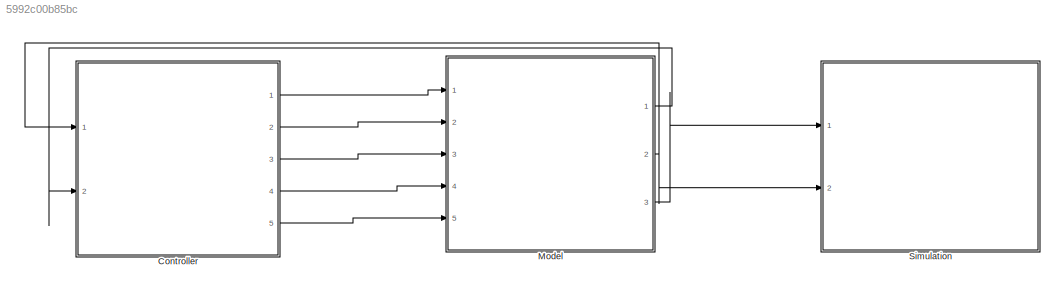
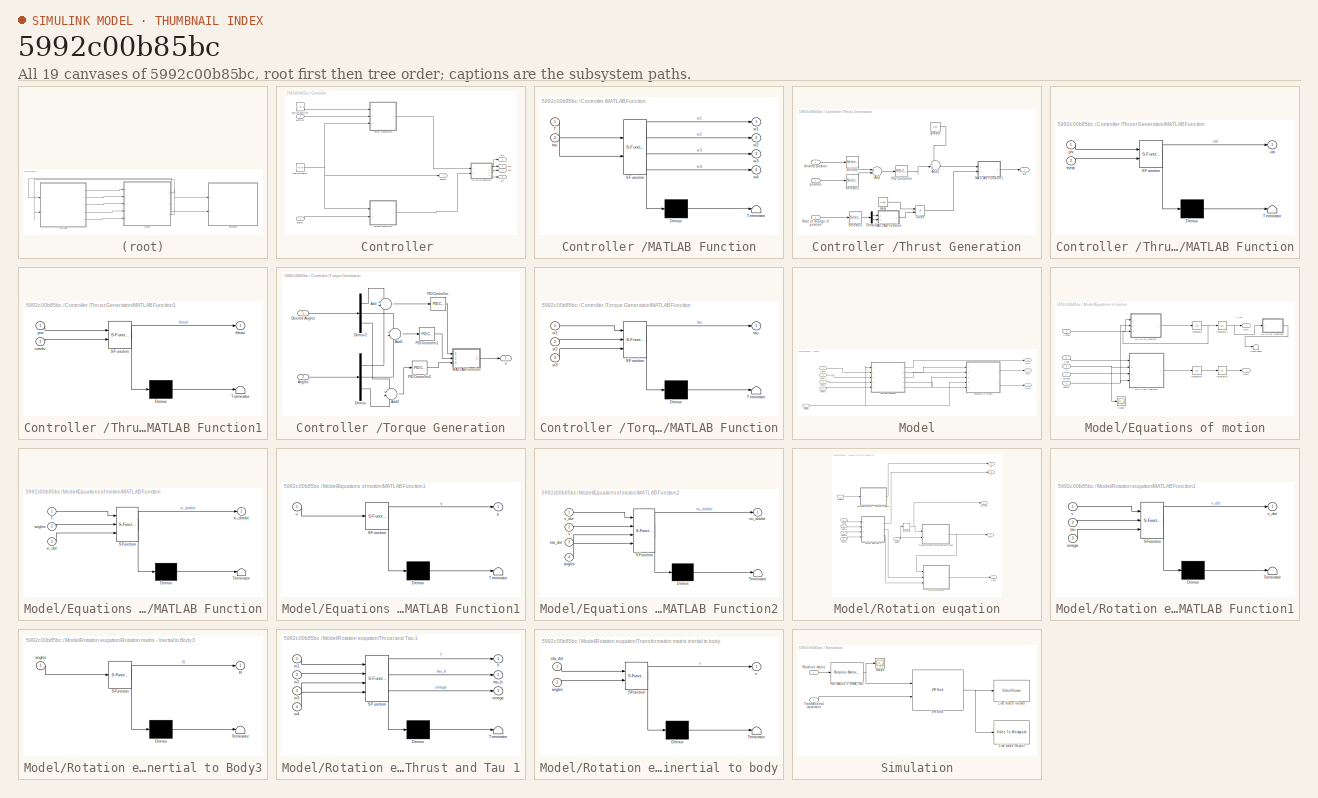
[diagram: thumbnail index - all 19 canvases of the model, root first then tree order]
MODEL slx_5992c00b85bc
KIND model
CONFIG AbsTol = auto
CONFIG EnableMultiTasking = off
CONFIG FixedStep = auto
CONFIG MaxStep = auto
CONFIG MinStep = auto
CONFIG RelTol = 1e-3
CONFIG SampleTimeConstraint = Unconstrained
CONFIG Solver = VariableStepAuto
CONFIG SolverName = VariableStepAuto
CONFIG StartTime = 0.0
CONFIG StopTime = 10.0
BLOCK [SubSystem] Controller 
  Ports = [2, 5]
  RequestExecContextInheritance = off
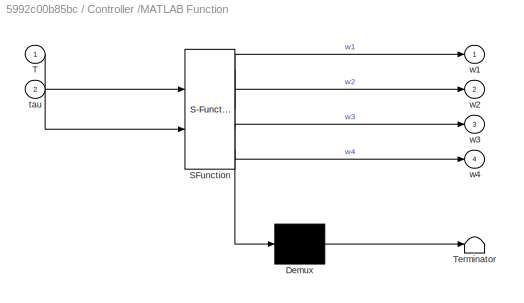
BLOCK [SubSystem] Controller /MATLAB Function
  ErrorFcn = Stateflow.Translate.translate
  PermitHierarchicalResolution = ExplicitOnly
  Ports = [2, 4]
  RequestExecContextInheritance = off
  SFBlockType = MATLAB Function
  TreatAsAtomicUnit = on
BLOCK [Demux] Controller /MATLAB Function/ Demux 
  Outputs = 1
  Ports = [1, 1]
BLOCK [S-Function] Controller /MATLAB Function/ SFunction 
  EnableBusSupport = on
  FunctionName = sf_sfun
  PortCounts = [2 5]
  Ports = [2, 5]
  SFcnIsStateOwnerBlock = off
  SFunctionDeploymentMode = off
  Tag = Stateflow S-Function teppo 4
BLOCK [Terminator] Controller /MATLAB Function/ Terminator 
BLOCK [Inport] Controller /MATLAB Function/T
  IconDisplay = Port number
BLOCK [Inport] Controller /MATLAB Function/tau
  IconDisplay = Port number
  Port = 2
BLOCK [Outport] Controller /MATLAB Function/w1
  IconDisplay = Port number
BLOCK [Outport] Controller /MATLAB Function/w2
  IconDisplay = Port number
  Port = 2
BLOCK [Outport] Controller /MATLAB Function/w3
  IconDisplay = Port number
  Port = 3
BLOCK [Outport] Controller /MATLAB Function/w4
  IconDisplay = Port number
  Port = 4
BLOCK [SubSystem] Controller /Thrust Generation
  Ports = [3, 1]
  RequestExecContextInheritance = off
BLOCK [Sum] Controller /Thrust Generation/Add
  IconShape = round
  InputSameDT = off
  Inputs = +-
  OutDataTypeStr = Inherit: Inherit via internal rule
  Ports = [2, 1]
  SaturateOnIntegerOverflow = off
BLOCK [Sum] Controller /Thrust Generation/Add2
  IconShape = round
  InputSameDT = off
  OutDataTypeStr = Inherit: Inherit via internal rule
  Ports = [2, 1]
  SaturateOnIntegerOverflow = off
BLOCK [Demux] Controller /Thrust Generation/Demux1
  DisplayOption = bar
  Outputs = 2
  Ports = [1, 2]
BLOCK [Product] Controller /Thrust Generation/Divide
  InputSameDT = off
  Inputs = */
  OutDataTypeStr = Inherit: Inherit via internal rule
  Ports = [2, 1]
  RndMeth = Floor
  SaturateOnIntegerOverflow = off
BLOCK [SubSystem] Controller /Thrust Generation/MATLAB Function
  ErrorFcn = Stateflow.Translate.translate
  PermitHierarchicalResolution = ExplicitOnly
  Ports = [2, 1]
  RequestExecContextInheritance = off
  SFBlockType = MATLAB Function
  TreatAsAtomicUnit = on
BLOCK [Demux] Controller /Thrust Generation/MATLAB Function/ Demux 
  Outputs = 1
  Ports = [1, 1]
BLOCK [S-Function] Controller /Thrust Generation/MATLAB Function/ SFunction 
  EnableBusSupport = on
  FunctionName = sf_sfun
  PortCounts = [2 2]
  Ports = [2, 2]
  SFcnIsStateOwnerBlock = off
  SFunctionDeploymentMode = off
  Tag = Stateflow S-Function teppo 2
BLOCK [Terminator] Controller /Thrust Generation/MATLAB Function/ Terminator 
BLOCK [Inport] Controller /Thrust Generation/MATLAB Function/phi
  IconDisplay = Port number
BLOCK [Inport] Controller /Thrust Generation/MATLAB Function/theta
  IconDisplay = Port number
  Port = 2
BLOCK [Outport] Controller /Thrust Generation/MATLAB Function/val
  IconDisplay = Port number
BLOCK [SubSystem] Controller /Thrust Generation/MATLAB Function1
  ErrorFcn = Stateflow.Translate.translate
  PermitHierarchicalResolution = ExplicitOnly
  Ports = [2, 1]
  RequestExecContextInheritance = off
  SFBlockType = MATLAB Function
  TreatAsAtomicUnit = on
BLOCK [Demux] Controller /Thrust Generation/MATLAB Function1/ Demux 
  Outputs = 1
  Ports = [1, 1]
BLOCK [S-Function] Controller /Thrust Generation/MATLAB Function1/ SFunction 
  EnableBusSupport = on
  FunctionName = sf_sfun
  PortCounts = [2 2]
  Ports = [2, 2]
  SFcnIsStateOwnerBlock = off
  SFunctionDeploymentMode = off
  Tag = Stateflow S-Function teppo 1
BLOCK [Terminator] Controller /Thrust Generation/MATLAB Function1/ Terminator 
BLOCK [Inport] Controller /Thrust Generation/MATLAB Function1/cosdiv
  IconDisplay = Port number
  Port = 2
BLOCK [Inport] Controller /Thrust Generation/MATLAB Function1/pos
  IconDisplay = Port number
BLOCK [Outport] Controller /Thrust Generation/MATLAB Function1/thrust
  IconDisplay = Port number
BLOCK [Reference] Controller /Thrust Generation/PID Controller  REF=simulink/Continuous/PID Controller
  Ports = [1, 1]
  SourceBlock = simulink/Continuous/PID Controller
  SourceProductBaseCode = SL
  SourceProductName = Simulink
  SourceType = PID 1dof
BLOCK [Inport] Controller /Thrust Generation/Rate of change of position 
  IconDisplay = Port number
  Port = 3
BLOCK [Selector] Controller /Thrust Generation/Selector
  IndexOptions = Index vector (dialog)
  Indices = [3]
  InputPortWidth = 3
  OutputSizes = 1
  Ports = [1, 1]
BLOCK [Selector] Controller /Thrust Generation/Selector1
  IndexOptions = Index vector (dialog)
  Indices = [3]
  InputPortWidth = 3
  OutputSizes = 1
  Ports = [1, 1]
BLOCK [Selector] Controller /Thrust Generation/Selector2
  IndexOptions = Index vector (dialog)
  Indices = [1 2]
  InputPortWidth = 3
  OutputSizes = 1
  Ports = [1, 1]
BLOCK [Inport] Controller /Thrust Generation/desired postion 
  IconDisplay = Port number
BLOCK [Constant] Controller /Thrust Generation/gravity 
  Value = 9.81
BLOCK [Constant] Controller /Thrust Generation/mass 
  Value = 0.468
BLOCK [Inport] Controller /Thrust Generation/position
  IconDisplay = Port number
  Port = 2
BLOCK [Outport] Controller /Thrust Generation/u1
  IconDisplay = Port number
BLOCK [SubSystem] Controller /Torque Generation
  Ports = [2, 1]
  RequestExecContextInheritance = off
BLOCK [Sum] Controller /Torque Generation/Add
  IconShape = round
  InputSameDT = off
  Inputs = +-
  OutDataTypeStr = Inherit: Inherit via internal rule
  Ports = [2, 1]
  SaturateOnIntegerOverflow = off
BLOCK [Sum] Controller /Torque Generation/Add1
  IconShape = round
  InputSameDT = off
  Inputs = +-
  OutDataTypeStr = Inherit: Inherit via internal rule
  Ports = [2, 1]
  SaturateOnIntegerOverflow = off
BLOCK [Sum] Controller /Torque Generation/Add2
  IconShape = round
  InputSameDT = off
  Inputs = +-
  OutDataTypeStr = Inherit: Inherit via internal rule
  Ports = [2, 1]
  SaturateOnIntegerOverflow = off
BLOCK [Inport] Controller /Torque Generation/Angles
  IconDisplay = Port number
  Port = 2
BLOCK [Demux] Controller /Torque Generation/Demux
  DisplayOption = bar
  Outputs = 3
  Ports = [1, 3]
BLOCK [Demux] Controller /Torque Generation/Demux2
  DisplayOption = bar
  Outputs = 3
  Ports = [1, 3]
BLOCK [Inport] Controller /Torque Generation/Desired Angles 
  IconDisplay = Port number
BLOCK [SubSystem] Controller /Torque Generation/MATLAB Function
  ErrorFcn = Stateflow.Translate.translate
  PermitHierarchicalResolution = ExplicitOnly
  Ports = [3, 1]
  RequestExecContextInheritance = off
  SFBlockType = MATLAB Function
  TreatAsAtomicUnit = on
BLOCK [Demux] Controller /Torque Generation/MATLAB Function/ Demux 
  Outputs = 1
  Ports = [1, 1]
BLOCK [S-Function] Controller /Torque Generation/MATLAB Function/ SFunction 
  EnableBusSupport = on
  FunctionName = sf_sfun
  PortCounts = [3 2]
  Ports = [3, 2]
  SFcnIsStateOwnerBlock = off
  SFunctionDeploymentMode = off
  Tag = Stateflow S-Function teppo 3
BLOCK [Terminator] Controller /Torque Generation/MATLAB Function/ Terminator 
BLOCK [Inport] Controller /Torque Generation/MATLAB Function/si1
  IconDisplay = Port number
BLOCK [Inport] Controller /Torque Generation/MATLAB Function/si2
  IconDisplay = Port number
  Port = 2
BLOCK [Inport] Controller /Torque Generation/MATLAB Function/si3
  IconDisplay = Port number
  Port = 3
BLOCK [Outport] Controller /Torque Generation/MATLAB Function/tau
  IconDisplay = Port number
BLOCK [Reference] Controller /Torque Generation/PID Controller  REF=simulink/Continuous/PID Controller
  Ports = [1, 1]
  SourceBlock = simulink/Continuous/PID Controller
  SourceProductBaseCode = SL
  SourceProductName = Simulink
  SourceType = PID 1dof
BLOCK [Reference] Controller /Torque Generation/PID Controller1  REF=simulink/Continuous/PID Controller
  Ports = [1, 1]
  SourceBlock = simulink/Continuous/PID Controller
  SourceProductBaseCode = SL
  SourceProductName = Simulink
  SourceType = PID 1dof
BLOCK [Reference] Controller /Torque Generation/PID Controller2  REF=simulink/Continuous/PID Controller
  Ports = [1, 1]
  SourceBlock = simulink/Continuous/PID Controller
  SourceProductBaseCode = SL
  SourceProductName = Simulink
  SourceType = PID 1dof
BLOCK [Outport] Controller /Torque Generation/u
  IconDisplay = Port number
BLOCK [Inport] Controller /angles
  IconDisplay = Port number
BLOCK [Outport] Controller /angles 
  IconDisplay = Port number
BLOCK [Constant] Controller /desired angles
  Value = [0 0 0]'
BLOCK [Constant] Controller /desired position
  Value = [0; 0; 0]
BLOCK [Inport] Controller /position
  IconDisplay = Port number
  Port = 2
BLOCK [Outport] Controller /w1
  IconDisplay = Port number
  Port = 2
BLOCK [Outport] Controller /w2
  IconDisplay = Port number
  Port = 3
BLOCK [Outport] Controller /w3
  IconDisplay = Port number
  Port = 4
BLOCK [Outport] Controller /w4
  IconDisplay = Port number
  Port = 5
BLOCK [SubSystem] Model
  Ports = [5, 3]
  RequestExecContextInheritance = off
BLOCK [SubSystem] Model/Equations of motion
  Ports = [5, 2]
  RequestExecContextInheritance = off
BLOCK [Integrator] Model/Equations of motion/Integrator
  Ports = [1, 1]
BLOCK [Integrator] Model/Equations of motion/Integrator1
  Ports = [1, 1]
BLOCK [Integrator] Model/Equations of motion/Integrator2
  Ports = [1, 1]
BLOCK [Integrator] Model/Equations of motion/Integrator3
  Ports = [1, 1]
BLOCK [SubSystem] Model/Equations of motion/MATLAB Function
  ErrorFcn = Stateflow.Translate.translate
  PermitHierarchicalResolution = ExplicitOnly
  Ports = [3, 1]
  RequestExecContextInheritance = off
  SFBlockType = MATLAB Function
  TreatAsAtomicUnit = on
BLOCK [Demux] Model/Equations of motion/MATLAB Function/ Demux 
  Outputs = 1
  Ports = [1, 1]
BLOCK [S-Function] Model/Equations of motion/MATLAB Function/ SFunction 
  EnableBusSupport = on
  FunctionName = sf_sfun
  PortCounts = [3 2]
  Ports = [3, 2]
  SFcnIsStateOwnerBlock = off
  SFunctionDeploymentMode = off
  Tag = Stateflow S-Function teppo 10
BLOCK [Terminator] Model/Equations of motion/MATLAB Function/ Terminator 
BLOCK [Inport] Model/Equations of motion/MATLAB Function/T
  IconDisplay = Port number
BLOCK [Inport] Model/Equations of motion/MATLAB Function/angles
  IconDisplay = Port number
  Port = 2
BLOCK [Inport] Model/Equations of motion/MATLAB Function/xi_dot
  IconDisplay = Port number
  Port = 3
BLOCK [Outport] Model/Equations of motion/MATLAB Function/xi_dotdot
  IconDisplay = Port number
BLOCK [SubSystem] Model/Equations of motion/MATLAB Function1
  ErrorFcn = Stateflow.Translate.translate
  PermitHierarchicalResolution = ExplicitOnly
  Ports = [1, 1]
  RequestExecContextInheritance = off
  SFBlockType = MATLAB Function
  TreatAsAtomicUnit = on
BLOCK [Demux] Model/Equations of motion/MATLAB Function1/ Demux 
  Outputs = 1
  Ports = [1, 1]
BLOCK [S-Function] Model/Equations of motion/MATLAB Function1/ SFunction 
  EnableBusSupport = on
  FunctionName = sf_sfun
  PortCounts = [1 2]
  Ports = [1, 2]
  SFcnIsStateOwnerBlock = off
  SFunctionDeploymentMode = off
  Tag = Stateflow S-Function teppo 5
BLOCK [Terminator] Model/Equations of motion/MATLAB Function1/ Terminator 
BLOCK [Inport] Model/Equations of motion/MATLAB Function1/u
  IconDisplay = Port number
BLOCK [Outport] Model/Equations of motion/MATLAB Function1/y
  IconDisplay = Port number
BLOCK [SubSystem] Model/Equations of motion/MATLAB Function2
  ErrorFcn = Stateflow.Translate.translate
  PermitHierarchicalResolution = ExplicitOnly
  Ports = [4, 1]
  RequestExecContextInheritance = off
  SFBlockType = MATLAB Function
  TreatAsAtomicUnit = on
BLOCK [Demux] Model/Equations of motion/MATLAB Function2/ Demux 
  Outputs = 1
  Ports = [1, 1]
BLOCK [S-Function] Model/Equations of motion/MATLAB Function2/ SFunction 
  EnableBusSupport = on
  FunctionName = sf_sfun
  PortCounts = [4 2]
  Ports = [4, 2]
  SFcnIsStateOwnerBlock = off
  SFunctionDeploymentMode = off
  Tag = Stateflow S-Function teppo 12
BLOCK [Terminator] Model/Equations of motion/MATLAB Function2/ Terminator 
BLOCK [Inport] Model/Equations of motion/MATLAB Function2/angles
  IconDisplay = Port number
  Port = 4
BLOCK [Inport] Model/Equations of motion/MATLAB Function2/eta_dot
  IconDisplay = Port number
  Port = 3
BLOCK [Outport] Model/Equations of motion/MATLAB Function2/nu_dotdot
  IconDisplay = Port number
BLOCK [Inport] Model/Equations of motion/MATLAB Function2/v
  IconDisplay = Port number
  Port = 2
BLOCK [Inport] Model/Equations of motion/MATLAB Function2/v_dot
  IconDisplay = Port number
BLOCK [Outport] Model/Equations of motion/Out1
  IconDisplay = Port number
BLOCK [Outport] Model/Equations of motion/Out2
  IconDisplay = Port number
  Port = 2
BLOCK [Scope] Model/Equations of motion/Scope
  Floating = off
  NumInputPorts = 1
  Ports = [1]
  ScopeSpecificationString = Simulink.scopes.TimeScopeBlockCfg('CurrentConfiguration', extmgr.ConfigurationSet(extmgr.Configuration('Core','General UI',true),extmgr.Configuration('Core','Source UI',true),extmgr.Configuration('Sources','WiredSimulink',true),extmgr.Configuration('Visuals','Time Domain',true,'SerializedDisplays',{struct('MinYLimReal','-1.00000','MaxYLimReal','1.00000','YLabelReal','','MinYLimMag','0.00000','MaxY...<+1365ch>
BLOCK [Terminator] Model/Equations of motion/Terminator
BLOCK [Inport] Model/Equations of motion/Thrust
  IconDisplay = Port number
BLOCK [Inport] Model/Equations of motion/angles 
  IconDisplay = Port number
  Port = 4
BLOCK [Inport] Model/Equations of motion/eta_dot 
  IconDisplay = Port number
  Port = 3
BLOCK [Inport] Model/Equations of motion/v 
  IconDisplay = Port number
  Port = 2
BLOCK [Inport] Model/Equations of motion/v_dot
  IconDisplay = Port number
  Port = 5
BLOCK [Inport] Model/Input
  IconDisplay = Port number
  Port = 2
BLOCK [Inport] Model/Input1
  IconDisplay = Port number
  Port = 3
BLOCK [Inport] Model/Input2
  IconDisplay = Port number
  Port = 4
BLOCK [Inport] Model/Input3
  IconDisplay = Port number
  Port = 5
BLOCK [Outport] Model/Out1
  IconDisplay = Port number
BLOCK [Outport] Model/Out2
  IconDisplay = Port number
  Port = 2
BLOCK [Outport] Model/Out3
  IconDisplay = Port number
  Port = 3
BLOCK [SubSystem] Model/Rotation euqation
  Ports = [5, 5]
  RequestExecContextInheritance = off
BLOCK [Derivative] Model/Rotation euqation/Derivative
BLOCK [Inport] Model/Rotation euqation/Input
  IconDisplay = Port number
  Port = 2
BLOCK [Inport] Model/Rotation euqation/Input1
  IconDisplay = Port number
  Port = 3
BLOCK [Inport] Model/Rotation euqation/Input2
  IconDisplay = Port number
  Port = 4
BLOCK [Inport] Model/Rotation euqation/Input3
  IconDisplay = Port number
  Port = 5
BLOCK [SubSystem] Model/Rotation euqation/MATLAB Function1
  ErrorFcn = Stateflow.Translate.translate
  PermitHierarchicalResolution = ExplicitOnly
  Ports = [3, 1]
  RequestExecContextInheritance = off
  SFBlockType = MATLAB Function
  TreatAsAtomicUnit = on
BLOCK [Demux] Model/Rotation euqation/MATLAB Function1/ Demux 
  Outputs = 1
  Ports = [1, 1]
BLOCK [S-Function] Model/Rotation euqation/MATLAB Function1/ SFunction 
  EnableBusSupport = on
  FunctionName = sf_sfun
  PortCounts = [3 2]
  Ports = [3, 2]
  SFcnIsStateOwnerBlock = off
  SFunctionDeploymentMode = off
  Tag = Stateflow S-Function teppo 11
BLOCK [Terminator] Model/Rotation euqation/MATLAB Function1/ Terminator 
BLOCK [Inport] Model/Rotation euqation/MATLAB Function1/omega
  IconDisplay = Port number
  Port = 3
BLOCK [Inport] Model/Rotation euqation/MATLAB Function1/tau
  IconDisplay = Port number
  Port = 2
BLOCK [Inport] Model/Rotation euqation/MATLAB Function1/v
  IconDisplay = Port number
BLOCK [Outport] Model/Rotation euqation/MATLAB Function1/v_dot
  IconDisplay = Port number
BLOCK [Outport] Model/Rotation euqation/R
  IconDisplay = Port number
BLOCK [SubSystem] Model/Rotation euqation/Rotation matrix - Inertial to Body3
  ErrorFcn = Stateflow.Translate.translate
  PermitHierarchicalResolution = ExplicitOnly
  Ports = [1, 1]
  RequestExecContextInheritance = off
  SFBlockType = MATLAB Function
  TreatAsAtomicUnit = on
BLOCK [Demux] Model/Rotation euqation/Rotation matrix - Inertial to Body3/ Demux 
  Outputs = 1
  Ports = [1, 1]
BLOCK [S-Function] Model/Rotation euqation/Rotation matrix - Inertial to Body3/ SFunction 
  EnableBusSupport = on
  FunctionName = sf_sfun
  PortCounts = [1 2]
  Ports = [1, 2]
  SFcnIsStateOwnerBlock = off
  SFunctionDeploymentMode = off
  Tag = Stateflow S-Function teppo 7
BLOCK [Terminator] Model/Rotation euqation/Rotation matrix - Inertial to Body3/ Terminator 
BLOCK [Outport] Model/Rotation euqation/Rotation matrix - Inertial to Body3/R
  IconDisplay = Port number
BLOCK [Inport] Model/Rotation euqation/Rotation matrix - Inertial to Body3/angles
  IconDisplay = Port number
BLOCK [Outport] Model/Rotation euqation/T
  IconDisplay = Port number
  Port = 2
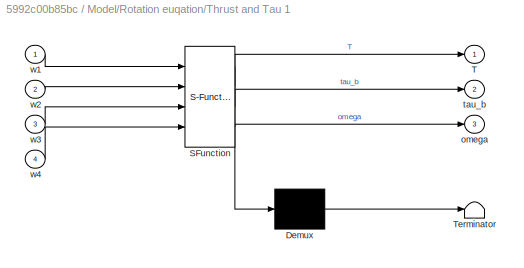
BLOCK [SubSystem] Model/Rotation euqation/Thrust and Tau 1
  ErrorFcn = Stateflow.Translate.translate
  PermitHierarchicalResolution = ExplicitOnly
  Ports = [4, 3]
  RequestExecContextInheritance = off
  SFBlockType = MATLAB Function
  TreatAsAtomicUnit = on
BLOCK [Demux] Model/Rotation euqation/Thrust and Tau 1/ Demux 
  Outputs = 1
  Ports = [1, 1]
BLOCK [S-Function] Model/Rotation euqation/Thrust and Tau 1/ SFunction 
  EnableBusSupport = on
  FunctionName = sf_sfun
  PortCounts = [4 4]
  Ports = [4, 4]
  SFcnIsStateOwnerBlock = off
  SFunctionDeploymentMode = off
  Tag = Stateflow S-Function teppo 8
BLOCK [Terminator] Model/Rotation euqation/Thrust and Tau 1/ Terminator 
BLOCK [Outport] Model/Rotation euqation/Thrust and Tau 1/T
  IconDisplay = Port number
BLOCK [Outport] Model/Rotation euqation/Thrust and Tau 1/omega
  IconDisplay = Port number
  Port = 3
BLOCK [Outport] Model/Rotation euqation/Thrust and Tau 1/tau_b
  IconDisplay = Port number
  Port = 2
BLOCK [Inport] Model/Rotation euqation/Thrust and Tau 1/w1
  IconDisplay = Port number
BLOCK [Inport] Model/Rotation euqation/Thrust and Tau 1/w2
  IconDisplay = Port number
  Port = 2
BLOCK [Inport] Model/Rotation euqation/Thrust and Tau 1/w3
  IconDisplay = Port number
  Port = 3
BLOCK [Inport] Model/Rotation euqation/Thrust and Tau 1/w4
  IconDisplay = Port number
  Port = 4
BLOCK [SubSystem] Model/Rotation euqation/Transformation matrix inertial to body
  ErrorFcn = Stateflow.Translate.translate
  PermitHierarchicalResolution = ExplicitOnly
  Ports = [2, 1]
  RequestExecContextInheritance = off
  SFBlockType = MATLAB Function
  TreatAsAtomicUnit = on
BLOCK [Demux] Model/Rotation euqation/Transformation matrix inertial to body/ Demux 
  Outputs = 1
  Ports = [1, 1]
BLOCK [S-Function] Model/Rotation euqation/Transformation matrix inertial to body/ SFunction 
  EnableBusSupport = on
  FunctionName = sf_sfun
  PortCounts = [2 2]
  Ports = [2, 2]
  SFcnIsStateOwnerBlock = off
  SFunctionDeploymentMode = off
  Tag = Stateflow S-Function teppo 9
BLOCK [Terminator] Model/Rotation euqation/Transformation matrix inertial to body/ Terminator 
BLOCK [Inport] Model/Rotation euqation/Transformation matrix inertial to body/angles
  IconDisplay = Port number
  Port = 2
BLOCK [Inport] Model/Rotation euqation/Transformation matrix inertial to body/eta_dot
  IconDisplay = Port number
BLOCK [Outport] Model/Rotation euqation/Transformation matrix inertial to body/v
  IconDisplay = Port number
BLOCK [Inport] Model/Rotation euqation/angles
  IconDisplay = Port number
BLOCK [InportShadow] Model/Rotation euqation/angles2
  IconDisplay = Port number
BLOCK [Outport] Model/Rotation euqation/eta_dot
  IconDisplay = Port number
  Port = 5
BLOCK [Outport] Model/Rotation euqation/v 
  IconDisplay = Port number
  Port = 3
BLOCK [Outport] Model/Rotation euqation/v_dot 
  IconDisplay = Port number
  Port = 4
BLOCK [Inport] Model/angles 
  IconDisplay = Port number
BLOCK [SubSystem] Simulation
  Ports = [2]
  RequestExecContextInheritance = off
BLOCK [VideoViewer] Simulation/Live Video Viewer
  FigPos = [1287 1075 375 346]
  Ports = [1]
  ScopeSpecificationString = vipscopes.VideoViewerScopeCfg('CurrentConfiguration', extmgr.ConfigurationSet(extmgr.Configuration('Core','General UI',true),extmgr.Configuration('Core','Source UI',true),extmgr.Configuration('Sources','WiredSimulink',true),extmgr.Configuration('Visuals','Video',true),extmgr.Configuration('Tools','Image Navigation Tools',true),extmgr.Configuration('Tools','Image Tool',true),extmgr.Configuration('T...<+74ch>
BLOCK [Reference] Simulation/Live video Output  REF=visionsinks/Video To Workspace
  Ports = [1]
  SourceBlock = visionsinks/Video To Workspace
  SourceProductBaseCode = VP
  SourceProductName = Computer Vision Toolbox
  SourceType = Video To Workspace
BLOCK [Reference] Simulation/Rot matrix -> VRML Rot  REF=vrlib/Utilities/Rotation Matrix
to VR Rotation
  Ports = [1, 1]
  SourceBlock = vrlib/Utilities/Rotation Matrix\nto VR Rotation
  SourceProductBaseCode = VR
  SourceProductName = Simulink 3D Animation
  SourceType = Rotation Matrix to VR Rotation
BLOCK [Inport] Simulation/Rotation matrix
  IconDisplay = Port number
BLOCK [Scope] Simulation/Scope
  Floating = off
  NumInputPorts = 1
  Ports = [1]
  ScopeSpecificationString = Simulink.scopes.TimeScopeBlockCfg('CurrentConfiguration', extmgr.ConfigurationSet(extmgr.Configuration('Core','General UI',true),extmgr.Configuration('Core','Source UI',true),extmgr.Configuration('Sources','WiredSimulink',true,'DataLoggingVariableName','ScopeData1'),extmgr.Configuration('Visuals','Time Domain',true,'SerializedDisplays',{struct('MinYLimReal','-1.45149','MaxYLimReal','3.64785','YLab...<+1741ch>
BLOCK [Inport] Simulation/Translational movement
  IconDisplay = Port number
  Port = 2
BLOCK [Reference] Simulation/VR Sink  REF=vrlib/VR Sink
  InstantiateOnLoad = on
  Ports = [2, 1]
  SourceBlock = vrlib/VR Sink
  SourceProductBaseCode = SL
  SourceProductName = Simulink
  SourceType = Virtual Reality Sink
ANNOTATION Model/Equations of motion: xi_dot
LINE Controller /MATLAB Function:1 -> Controller /w1:1
LINE Controller /MATLAB Function:2 -> Controller /w2:1
LINE Controller /MATLAB Function:3 -> Controller /w3:1
LINE Controller /MATLAB Function:4 -> Controller /w4:1
LINE Controller /Thrust Generation/Add2:1 -> Controller /Thrust Generation/MATLAB Function1:1
LINE Controller /Thrust Generation/Add:1 -> Controller /Thrust Generation/PID Controller:1
LINE Controller /Thrust Generation/Demux1:1 -> Controller /Thrust Generation/MATLAB Function:1
LINE Controller /Thrust Generation/Demux1:2 -> Controller /Thrust Generation/MATLAB Function:2
LINE Controller /Thrust Generation/Divide:1 -> Controller /Thrust Generation/MATLAB Function1:2
LINE Controller /Thrust Generation/MATLAB Function1:1 -> Controller /Thrust Generation/u1:1
LINE Controller /Thrust Generation/MATLAB Function:1 -> Controller /Thrust Generation/Divide:2
LINE Controller /Thrust Generation/PID Controller:1 -> Controller /Thrust Generation/Add2:2
LINE Controller /Thrust Generation/Rate of change of position :1 -> Controller /Thrust Generation/Selector2:1
LINE Controller /Thrust Generation/Selector1:1 -> Controller /Thrust Generation/Add:2
LINE Controller /Thrust Generation/Selector2:1 -> Controller /Thrust Generation/Demux1:1
LINE Controller /Thrust Generation/Selector:1 -> Controller /Thrust Generation/Add:1
LINE Controller /Thrust Generation/desired postion :1 -> Controller /Thrust Generation/Selector:1
LINE Controller /Thrust Generation/gravity :1 -> Controller /Thrust Generation/Add2:1
LINE Controller /Thrust Generation/mass :1 -> Controller /Thrust Generation/Divide:1
LINE Controller /Thrust Generation/position:1 -> Controller /Thrust Generation/Selector1:1
LINE Controller /Thrust Generation:1 -> Controller /MATLAB Function:1
LINE Controller /Torque Generation/Add1:1 -> Controller /Torque Generation/PID Controller1:1
LINE Controller /Torque Generation/Add2:1 -> Controller /Torque Generation/PID Controller2:1
LINE Controller /Torque Generation/Add:1 -> Controller /Torque Generation/PID Controller:1
LINE Controller /Torque Generation/Angles:1 -> Controller /Torque Generation/Demux:1
LINE Controller /Torque Generation/Demux2:1 -> Controller /Torque Generation/Add:1
LINE Controller /Torque Generation/Demux2:2 -> Controller /Torque Generation/Add1:1
LINE Controller /Torque Generation/Demux2:3 -> Controller /Torque Generation/Add2:1
LINE Controller /Torque Generation/Demux:1 -> Controller /Torque Generation/Add:2
LINE Controller /Torque Generation/Demux:2 -> Controller /Torque Generation/Add1:2
LINE Controller /Torque Generation/Demux:3 -> Controller /Torque Generation/Add2:2
LINE Controller /Torque Generation/Desired Angles :1 -> Controller /Torque Generation/Demux2:1
LINE Controller /Torque Generation/MATLAB Function:1 -> Controller /Torque Generation/u:1
LINE Controller /Torque Generation/PID Controller1:1 -> Controller /Torque Generation/MATLAB Function:2
LINE Controller /Torque Generation/PID Controller2:1 -> Controller /Torque Generation/MATLAB Function:3
LINE Controller /Torque Generation/PID Controller:1 -> Controller /Torque Generation/MATLAB Function:1
LINE Controller /Torque Generation:1 -> Controller /MATLAB Function:2
LINE Controller /angles:1 -> Controller /Torque Generation:2
NET Controller /desired angles:1 -> Controller /Thrust Generation:3, Controller /Torque Generation:1, Controller /angles :1
LINE Controller /desired position:1 -> Controller /Thrust Generation:1
LINE Controller /position:1 -> Controller /Thrust Generation:2
LINE Controller :1 -> Model:1
LINE Controller :2 -> Model:2
LINE Controller :3 -> Model:3
LINE Controller :4 -> Model:4
LINE Controller :5 -> Model:5
NET Model/Equations of motion/Integrator1:1 -> Model/Equations of motion/MATLAB Function1:1, Model/Equations of motion/Out1:1
LINE Model/Equations of motion/Integrator2:1 -> Model/Equations of motion/Integrator3:1
LINE Model/Equations of motion/Integrator3:1 -> Model/Equations of motion/Out2:1
NET Model/Equations of motion/Integrator:1 -> Model/Equations of motion/Integrator1:1, Model/Equations of motion/MATLAB Function:3
LINE Model/Equations of motion/MATLAB Function1:1 -> Model/Equations of motion/Terminator:1
LINE Model/Equations of motion/MATLAB Function2:1 -> Model/Equations of motion/Integrator2:1
LINE Model/Equations of motion/MATLAB Function:1 -> Model/Equations of motion/Integrator:1
LINE Model/Equations of motion/Thrust:1 -> Model/Equations of motion/MATLAB Function:1
NET Model/Equations of motion/angles :1 -> Model/Equations of motion/MATLAB Function2:4, Model/Equations of motion/MATLAB Function:2
LINE Model/Equations of motion/eta_dot :1 -> Model/Equations of motion/MATLAB Function2:3
NET Model/Equations of motion/v :1 -> Model/Equations of motion/MATLAB Function2:2, Model/Equations of motion/Scope:1
LINE Model/Equations of motion/v_dot:1 -> Model/Equations of motion/MATLAB Function2:1
LINE Model/Equations of motion:1 -> Model/Out1:1
LINE Model/Equations of motion:2 -> Model/Out2:1
LINE Model/Input1:1 -> Model/Rotation euqation:3
LINE Model/Input2:1 -> Model/Rotation euqation:4
LINE Model/Input3:1 -> Model/Rotation euqation:5
LINE Model/Input:1 -> Model/Rotation euqation:2
NET Model/Rotation euqation/Derivative:1 -> Model/Rotation euqation/Transformation matrix inertial to body:1, Model/Rotation euqation/eta_dot:1
LINE Model/Rotation euqation/Input1:1 -> Model/Rotation euqation/Thrust and Tau 1:2
LINE Model/Rotation euqation/Input2:1 -> Model/Rotation euqation/Thrust and Tau 1:3
LINE Model/Rotation euqation/Input3:1 -> Model/Rotation euqation/Thrust and Tau 1:4
LINE Model/Rotation euqation/Input:1 -> Model/Rotation euqation/Thrust and Tau 1:1
LINE Model/Rotation euqation/MATLAB Function1:1 -> Model/Rotation euqation/v_dot :1
LINE Model/Rotation euqation/Rotation matrix - Inertial to Body3:1 -> Model/Rotation euqation/R:1
LINE Model/Rotation euqation/Thrust and Tau 1:1 -> Model/Rotation euqation/T:1
LINE Model/Rotation euqation/Thrust and Tau 1:2 -> Model/Rotation euqation/MATLAB Function1:2
LINE Model/Rotation euqation/Thrust and Tau 1:3 -> Model/Rotation euqation/MATLAB Function1:3
NET Model/Rotation euqation/Transformation matrix inertial to body:1 -> Model/Rotation euqation/MATLAB Function1:1, Model/Rotation euqation/v :1
LINE Model/Rotation euqation/angles2:1 -> Model/Rotation euqation/Rotation matrix - Inertial to Body3:1
NET Model/Rotation euqation/angles:1 -> Model/Rotation euqation/Derivative:1, Model/Rotation euqation/Transformation matrix inertial to body:2
LINE Model/Rotation euqation:1 -> Model/Out3:1
LINE Model/Rotation euqation:2 -> Model/Equations of motion:1
LINE Model/Rotation euqation:3 -> Model/Equations of motion:2
LINE Model/Rotation euqation:4 -> Model/Equations of motion:5
LINE Model/Rotation euqation:5 -> Model/Equations of motion:3
NET Model/angles :1 -> Model/Equations of motion:4, Model/Rotation euqation:1
LINE Model:1 -> Controller :2
NET Model:2 -> Controller :1, Simulation:2
LINE Model:3 -> Simulation:1
NET Simulation/Rot matrix -> VRML Rot:1 -> Simulation/Scope:1, Simulation/VR Sink:1
LINE Simulation/Rotation matrix:1 -> Simulation/Rot matrix -> VRML Rot:1
LINE Simulation/Translational movement:1 -> Simulation/VR Sink:2
NET Simulation/VR Sink:1 -> Simulation/Live Video Viewer:1, Simulation/Live video Output:1
note: NET lines group one-source signal fan-out (src -> all destinations, sorted); 1:1 wires keep LINE
CHART Controller
/Thrust Generation/MATLAB Function1 states=1 transitions=1
  STATE_LABEL 'eML_blk_kernel()'
  STATE_LABEL 'SCRIPT:\nfunction thrust = fcn(pos, cosdiv)\n    thrust = pos * cosdiv;'
CHART Controller
/Thrust Generation/MATLAB Function states=1 transitions=1
  STATE_LABEL 'eML_blk_kernel()'
  STATE_LABEL 'SCRIPT:\nfunction val = fcn(phi, theta)\n    val = cos(phi) * cos(theta);\n'
CHART Controller
/Torque Generation/MATLAB Function states=1 transitions=1
  STATE_LABEL 'eML_blk_kernel()'
  STATE_LABEL 'SCRIPT:\nfunction tau = fcn(si1, si2, si3)\n    tau = [si1; si2; si3];'
CHART Controller
/MATLAB Function states=1 transitions=1
  STATE_LABEL 'eML_blk_kernel()'
  STATE_LABEL 'SCRIPT:\nfunction [w1,w2,w3,w4] = fcn(T, tau)\n    k = 2.980 * 10 ^-6; % 2.9800e-06 lift constant\n    b = 1.140 * 10 ^-7;   % 1.1400e-07 drag constant\n    l = 0.225; % distance between rotors    \n    \n    w1 = (T/4*k)-(tau(2)/2*k*l)-(tau(3)/4*b);\n    w2 = (T/4*k)-(tau(1)/2*k*l)-(tau(3)/4*b);\n    w3 = (T/4*k)+(tau(2)/2*k*l)-(tau(3)/4*b);\n    w4 = (T/4*k)+(tau(1)/2*k*l)+(tau(3)/4*b);\n    \n    \n'
CHART Model/Equations of motion/MATLAB Function1 states=1 transitions=1
  STATE_LABEL 'eML_blk_kernel()'
  STATE_LABEL 'SCRIPT:\nfunction y = fcn(u)\nSimulatoras.Simulator();\ny = u;\n'
CHART Model/Rotation euqation/Rotation matrix - Inertial to Body3 states=1 transitions=1
  STATE_LABEL 'eML_blk_kernel()'
  STATE_LABEL 'SCRIPT:\nfunction R = fcn(angles)\n    \n    phi = angles(1);\n    theta = angles(2);\n    psi = angles(3);\n    \n    R = [cos(psi) * cos(theta) cos(psi) * sin(theta) * sin(phi) - sin(psi) * cos(phi) cos(psi) * sin(theta) * cos(phi) + sin(psi) * sin(phi);\n\t\t  sin(psi) * cos(theta) sin(psi) * sin(theta) * sin(phi) + cos(psi) * cos(phi) sin(psi) * sin(theta) * cos(phi) - cos(psi) * sin(phi);\n\t\t  -sin(thet...<+56ch>'
CHART Model/Rotation euqation/Thrust and Tau
1 states=1 transitions=1
  STATE_LABEL 'eML_blk_kernel()'
  STATE_LABEL 'SCRIPT:\nfunction [T, tau_b, omega] = fcn(w1, w2, w3, w4)\n\n    k = 2.980 * 10 ^-6; % 2.9800e-06 lift constant\n    b = 1.140 * 10 ^-7;   % 1.1400e-07 drag constant\n    Im = 3.357 * 10 ^-5; % Inertia moment of rotors\n    l = 0.225; % distance between rotors\n    km = 2 * 10 ^-6;\n    \n    \n    omega_1 = sqrt(abs(w1));\n    omega_2 = sqrt(abs(w2));\n    omega_3 = sqrt(abs(w3));\n    omega_4 = sqrt(abs(w4))...<+667ch>'
CHART Model/Rotation euqation/Transformation matrix inertial to body states=1 transitions=1
  STATE_LABEL 'eML_blk_kernel()'
  STATE_LABEL 'SCRIPT:\nfunction v = fcn(eta_dot,angles)\n%     phi_dot = eta_dot(1);\n%     theta_dot = eta_dot(2);\n%     psi_dot = eta_dot(3);\n    phi = angles(1);\n    theta = angles(2);\n    W_eta = [1 0 -sin(phi);\n            0 cos(phi) cos(theta) * sin(phi); \n            0 -sin(phi) cos(theta) * cos(phi)\n    ];\n    \n    v = W_eta * eta_dot;'
CHART Model/Equations of motion/MATLAB Function states=1 transitions=1
  STATE_LABEL 'eML_blk_kernel()'
  STATE_LABEL "SCRIPT:\nfunction xi_dotdot = fcn(T, angles, xi_dot)\n   phi = angles(1);\n   theta = angles(2);\n   psi = angles(3);\n   g = 9.81;\n   m = 0.468;\n   R = [cos(psi) * sin(theta)*cos(phi) + sin(psi) * sin(phi);\n        sin(psi)*sin(theta)*cos(phi) - cos(psi)*sin(phi);\n        cos(theta)*cos(phi)\n   ];\n    Ax = 0.25;\n    Ay = 0.25; \n    Az = 0.25;\n    xi_dotdot = [0 0 -g]' + (T/m) * R;  % getting error her...<+115ch>"
CHART Model/Rotation euqation/MATLAB Function1 states=1 transitions=1
  STATE_LABEL 'eML_blk_kernel()'
  STATE_LABEL "SCRIPT:\nfunction v_dot = fcn(v, tau, omega)\n%     Ixx = 0.0049;\n%     Iyy = 0.0049;\n%     Izz = 0.0088;\n%     omega_1 = omega(1);\n%     omega_2 = omega(2);\n%     omega_3 = omega(3);\n%     omega_4 = omega(4);\n%     \n%     I = diag([Ixx, Iyy, Izz]);\n%     omega_gamma = omega_1 - omega_2 + omega_3 - omega_4;\n% %     v_dot = I \\ ();\nv_dot = [10, 20, 30]';\n\n%     v_dot = inv(I) * cross(-v, [Ixx * p; Iy...<+143ch>"
CHART Model/Equations of motion/MATLAB Function2 states=1 transitions=1
  STATE_LABEL 'eML_blk_kernel()'
  STATE_LABEL 'SCRIPT:\nfunction nu_dotdot = fcn(v_dot, v, eta_dot, angles)\n    \n    phi_dot = eta_dot(1);\n    theta_dot = eta_dot(2);\n    psi_dot = eta_dot(3);\n    phi = angles(1);\n    theta = angles(2);\n    psi = angles(3);\n    W_n = [1 sin(phi)*tan(theta) cos(phi)*tan(theta);\n           0 cos(phi) -sin(phi);\n           0 sin(phi)/cos(theta) cos(phi)/cos(theta)\n        ];\n    nu_dotdot = [0 phi_dot * cos(phi) *...<+358ch>'
